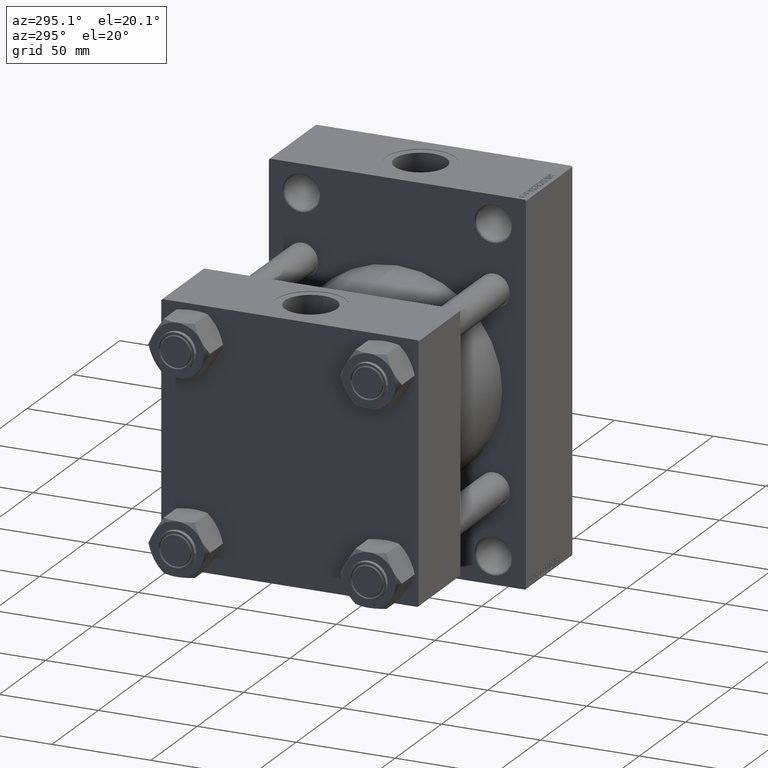
[diagram: clean part render]
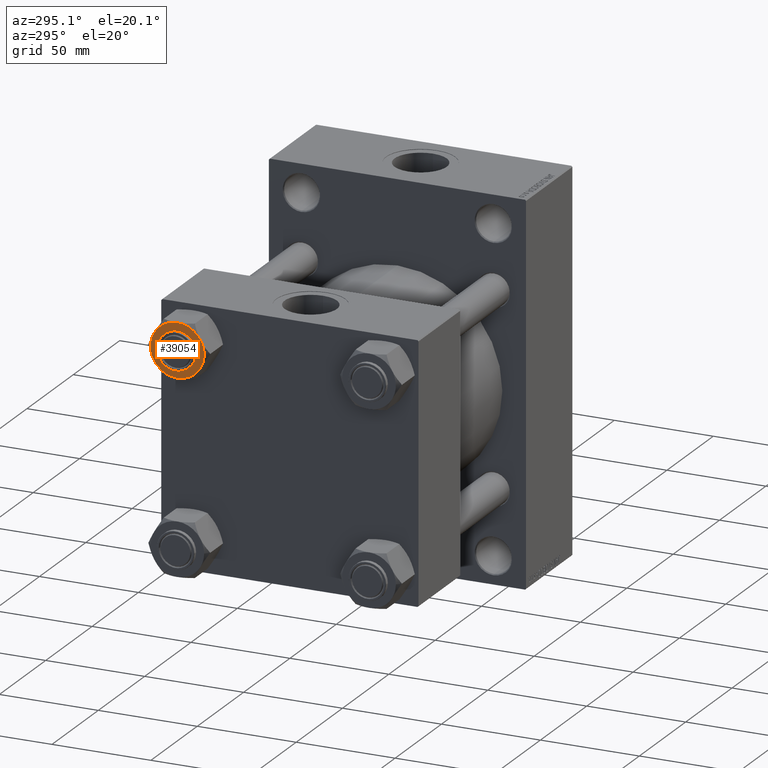
[diagram: same view with one face highlighted and labeled with its STEP entity id]
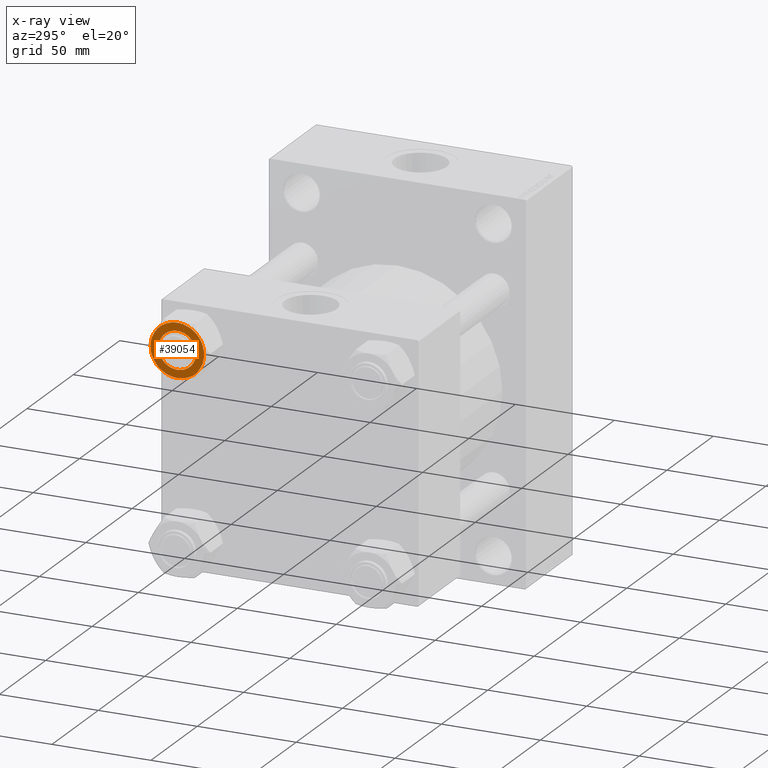
[diagram: x-ray of the same camera — body ghosted, the highlighted face saturated]
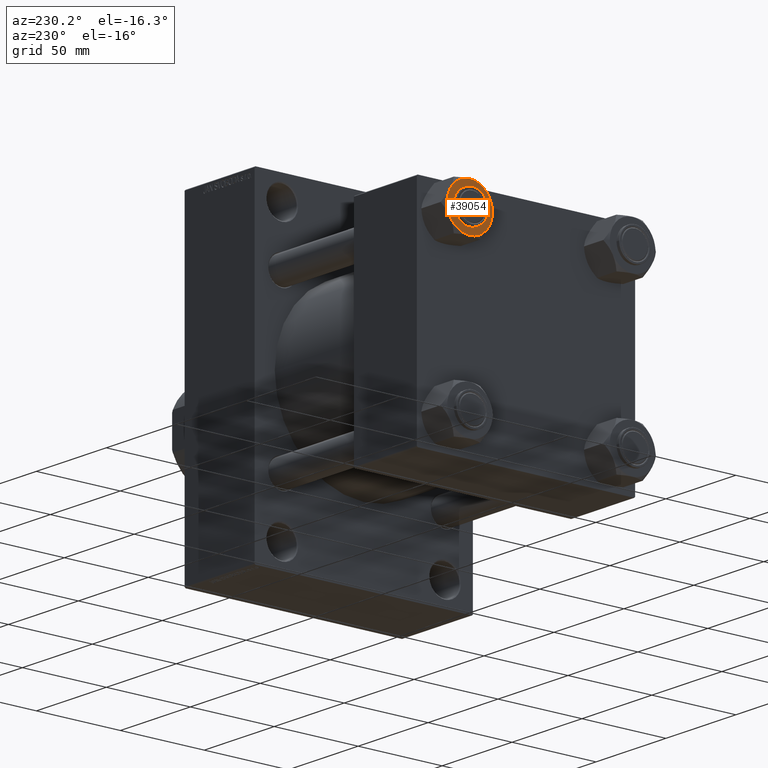
[diagram: same view with one face highlighted and labeled with its STEP entity id]
A machine part, auxiliary view. The second image highlights one B-rep face of the part: STEP entity #39054.
The next image is the same camera in x-ray: the body ghosted, the highlighted face saturated — about 0% of this face is hidden behind the body in this view.
A second angle (auxiliary view) of the same face is appended — the face is thin or edge-on in the first view.
In plain terms, the highlighted planar face has unit normal (1, 0, 0).
Its self-contained STEP definition (entity closure, byte-faithful):
#281 = DIRECTION ( 'NONE',  ( -1.000000000000000000, 0.000000000000000000, 0.000000000000000000 ) ) ;
#466 = AXIS2_PLACEMENT_3D ( 'NONE', #44921, #36950, #281 ) ;
#2579 = CARTESIAN_POINT ( 'NONE',  ( -11.71500000000000341, 6.763658403556467746, 0.000000000000000000 ) ) ;
#3296 = CIRCLE ( 'NONE', #33338, 13.52731680711293727 ) ;
#3442 = DIRECTION ( 'NONE',  ( 0.000000000000000000, 0.000000000000000000, 1.000000000000000000 ) ) ;
#3865 = FACE_OUTER_BOUND ( 'NONE', #24515, .T. ) ;
#4158 = VERTEX_POINT ( 'NONE', #2579 ) ;
#4345 = VERTEX_POINT ( 'NONE', #8822 ) ;
#4460 = ORIENTED_EDGE ( 'NONE', *, *, #45106, .F. ) ;
#4531 = AXIS2_PLACEMENT_3D ( 'NONE', #21289, #3442, #17917 ) ;
#4905 = VERTEX_POINT ( 'NONE', #25727 ) ;
#5799 = CIRCLE ( 'NONE', #11977, 13.52731680711293727 ) ;
#5990 = CARTESIAN_POINT ( 'NONE',  ( 0.000000000000000000, 0.000000000000000000, 0.000000000000000000 ) ) ;
#6239 = CARTESIAN_POINT ( 'NONE',  ( 11.71500000000000519, 6.763658403556469523, 0.000000000000000000 ) ) ;
#6462 = CARTESIAN_POINT ( 'NONE',  ( 13.52731680711293727, 0.000000000000000000, 0.000000000000000000 ) ) ;
#7389 = CIRCLE ( 'NONE', #32070, 13.52731680711293727 ) ;
#8523 = ORIENTED_EDGE ( 'NONE', *, *, #37089, .F. ) ;
#8555 = AXIS2_PLACEMENT_3D ( 'NONE', #19979, #20219, #27469 ) ;
#8822 = CARTESIAN_POINT ( 'NONE',  ( -9.500000000000000000, 0.000000000000000000, 0.000000000000000000 ) ) ;
#9540 = DIRECTION ( 'NONE',  ( 1.000000000000000000, 0.000000000000000000, 0.000000000000000000 ) ) ;
#11702 = EDGE_CURVE ( 'NONE', #24690, #4905, #3296, .T. ) ;
#11977 = AXIS2_PLACEMENT_3D ( 'NONE', #24435, #18075, #46177 ) ;
#12242 = EDGE_CURVE ( 'NONE', #19854, #18051, #27155, .T. ) ;
#12297 = DIRECTION ( 'NONE',  ( 0.000000000000000000, -0.000000000000000000, -1.000000000000000000 ) ) ;
#12756 = CARTESIAN_POINT ( 'NONE',  ( 0.000000000000000000, 0.000000000000000000, 0.000000000000000000 ) ) ;
#13566 = VERTEX_POINT ( 'NONE', #47573 ) ;
#13701 = EDGE_CURVE ( 'NONE', #4158, #13566, #23361, .T. ) ;
#13936 = DIRECTION ( 'NONE',  ( 1.000000000000000000, 0.000000000000000000, 0.000000000000000000 ) ) ;
#14200 = CARTESIAN_POINT ( 'NONE',  ( 0.000000000000000000, 0.000000000000000000, 0.000000000000000000 ) ) ;
#14361 = ORIENTED_EDGE ( 'NONE', *, *, #30152, .T. ) ;
#15429 = CIRCLE ( 'NONE', #47041, 9.500000000000000000 ) ;
#17624 = VERTEX_POINT ( 'NONE', #43458 ) ;
#17917 = DIRECTION ( 'NONE',  ( 1.000000000000000000, 0.000000000000000000, 0.000000000000000000 ) ) ;
#18051 = VERTEX_POINT ( 'NONE', #6462 ) ;
#18075 = DIRECTION ( 'NONE',  ( 0.000000000000000000, -0.000000000000000000, -1.000000000000000000 ) ) ;
#18532 = DIRECTION ( 'NONE',  ( -1.000000000000000000, 0.000000000000000000, 0.000000000000000000 ) ) ;
#18944 = CIRCLE ( 'NONE', #466, 13.52731680711293727 ) ;
#19150 = CIRCLE ( 'NONE', #4531, 13.52731680711293727 ) ;
#19557 = EDGE_CURVE ( 'NONE', #37879, #4158, #5799, .T. ) ;
#19854 = VERTEX_POINT ( 'NONE', #6239 ) ;
#19979 = CARTESIAN_POINT ( 'NONE',  ( 0.000000000000000000, 0.000000000000000000, 0.000000000000000000 ) ) ;
#20219 = DIRECTION ( 'NONE',  ( 0.000000000000000000, 0.000000000000000000, -1.000000000000000000 ) ) ;
#20674 = DIRECTION ( 'NONE',  ( -1.000000000000000000, 0.000000000000000000, 0.000000000000000000 ) ) ;
#20884 = ORIENTED_EDGE ( 'NONE', *, *, #13701, .F. ) ;
#20918 = DIRECTION ( 'NONE',  ( 0.000000000000000000, -0.000000000000000000, -1.000000000000000000 ) ) ;
#20968 = ORIENTED_EDGE ( 'NONE', *, *, #23766, .F. ) ;
#21289 = CARTESIAN_POINT ( 'NONE',  ( 0.000000000000000000, 0.000000000000000000, 0.000000000000000000 ) ) ;
#21393 = CARTESIAN_POINT ( 'NONE',  ( 0.000000000000000000, 0.000000000000000000, 0.000000000000000000 ) ) ;
#21585 = EDGE_CURVE ( 'NONE', #17624, #4345, #42876, .T. ) ;
#21667 = DIRECTION ( 'NONE',  ( 0.000000000000000000, -0.000000000000000000, -1.000000000000000000 ) ) ;
#22201 = EDGE_LOOP ( 'NONE', ( #8523, #40778 ) ) ;
#23361 = CIRCLE ( 'NONE', #46544, 13.52731680711293727 ) ;
#23765 = CARTESIAN_POINT ( 'NONE',  ( 0.000000000000000000, 0.000000000000000000, 0.000000000000000000 ) ) ;
#23766 = EDGE_CURVE ( 'NONE', #18051, #24690, #7389, .T. ) ;
#23845 = DIRECTION ( 'NONE',  ( -1.000000000000000000, 0.000000000000000000, 0.000000000000000000 ) ) ;
#24435 = CARTESIAN_POINT ( 'NONE',  ( 0.000000000000000000, 0.000000000000000000, 0.000000000000000000 ) ) ;
#24515 = EDGE_LOOP ( 'NONE', ( #20884, #47111, #4460, #36340, #20968, #31658, #14361 ) ) ;
#24690 = VERTEX_POINT ( 'NONE', #30943 ) ;
#25727 = CARTESIAN_POINT ( 'NONE',  ( 3.004629197474319246E-15, -13.52731680711293727, 0.000000000000000000 ) ) ;
#27155 = CIRCLE ( 'NONE', #36442, 13.52731680711293727 ) ;
#27469 = DIRECTION ( 'NONE',  ( -1.000000000000000000, 0.000000000000000000, -0.000000000000000000 ) ) ;
#28274 = DIRECTION ( 'NONE',  ( 0.000000000000000000, -0.000000000000000000, -1.000000000000000000 ) ) ;
#29440 = FACE_BOUND ( 'NONE', #22201, .T. ) ;
#30152 = EDGE_CURVE ( 'NONE', #19854, #13566, #19150, .T. ) ;
#30943 = CARTESIAN_POINT ( 'NONE',  ( 11.71500000000000341, -6.763658403556471299, 0.000000000000000000 ) ) ;
#31658 = ORIENTED_EDGE ( 'NONE', *, *, #12242, .F. ) ;
#32070 = AXIS2_PLACEMENT_3D ( 'NONE', #14200, #21667, #18532 ) ;
#32141 = DIRECTION ( 'NONE',  ( -1.000000000000000000, 0.000000000000000000, 0.000000000000000000 ) ) ;
#33338 = AXIS2_PLACEMENT_3D ( 'NONE', #47135, #28274, #32141 ) ;
#34389 = AXIS2_PLACEMENT_3D ( 'NONE', #23765, #38505, #9540 ) ;
#36261 = CARTESIAN_POINT ( 'NONE',  ( -11.71500000000000874, -6.763658403556459753, 0.000000000000000000 ) ) ;
#36340 = ORIENTED_EDGE ( 'NONE', *, *, #11702, .F. ) ;
#36442 = AXIS2_PLACEMENT_3D ( 'NONE', #5990, #20918, #20674 ) ;
#36950 = DIRECTION ( 'NONE',  ( 0.000000000000000000, -0.000000000000000000, -1.000000000000000000 ) ) ;
#37089 = EDGE_CURVE ( 'NONE', #4345, #17624, #15429, .T. ) ;
#37879 = VERTEX_POINT ( 'NONE', #36261 ) ;
#38505 = DIRECTION ( 'NONE',  ( 0.000000000000000000, 0.000000000000000000, 1.000000000000000000 ) ) ;
#39054 = ADVANCED_FACE ( 'NONE', ( #29440, #3865 ), #44417, .F. ) ;
#40778 = ORIENTED_EDGE ( 'NONE', *, *, #21585, .F. ) ;
#42876 = CIRCLE ( 'NONE', #34389, 9.500000000000000000 ) ;
#43386 = DIRECTION ( 'NONE',  ( 0.000000000000000000, 0.000000000000000000, 1.000000000000000000 ) ) ;
#43458 = CARTESIAN_POINT ( 'NONE',  ( 9.500000000000000000, 1.163414459189985485E-15, 0.000000000000000000 ) ) ;
#44417 = PLANE ( 'NONE',  #8555 ) ;
#44921 = CARTESIAN_POINT ( 'NONE',  ( 0.000000000000000000, 0.000000000000000000, 0.000000000000000000 ) ) ;
#45106 = EDGE_CURVE ( 'NONE', #4905, #37879, #18944, .T. ) ;
#46177 = DIRECTION ( 'NONE',  ( -1.000000000000000000, 0.000000000000000000, 0.000000000000000000 ) ) ;
#46544 = AXIS2_PLACEMENT_3D ( 'NONE', #12756, #12297, #23845 ) ;
#47041 = AXIS2_PLACEMENT_3D ( 'NONE', #21393, #43386, #13936 ) ;
#47111 = ORIENTED_EDGE ( 'NONE', *, *, #19557, .F. ) ;
#47135 = CARTESIAN_POINT ( 'NONE',  ( 0.000000000000000000, 0.000000000000000000, 0.000000000000000000 ) ) ;
#47573 = CARTESIAN_POINT ( 'NONE',  ( -1.502314598737160017E-15, 13.52731680711293727, 0.000000000000000000 ) ) ;